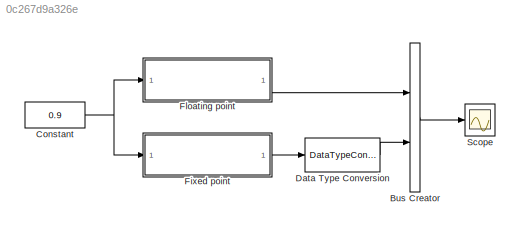
MODEL slx_0c267d9a326e
KIND model
BLOCK [BusCreator] Bus Creator
  DisplayOption = bar
  Inputs = 2
  Ports = [2, 1]
BLOCK [Constant] Constant
  SampleTime = Inf
  Value = 0.9
BLOCK [DataTypeConversion] Data Type Conversion
  OutDataTypeStr = double
  RndMeth = Floor
  SaturateOnIntegerOverflow = off
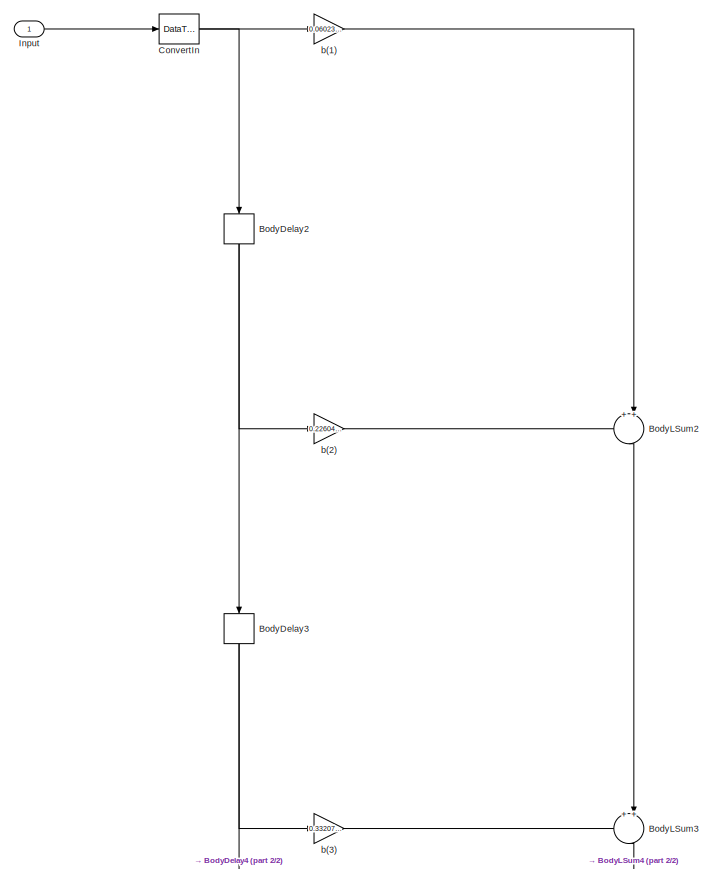
[diagram: Fixed point - part 1/2, full width, top band]
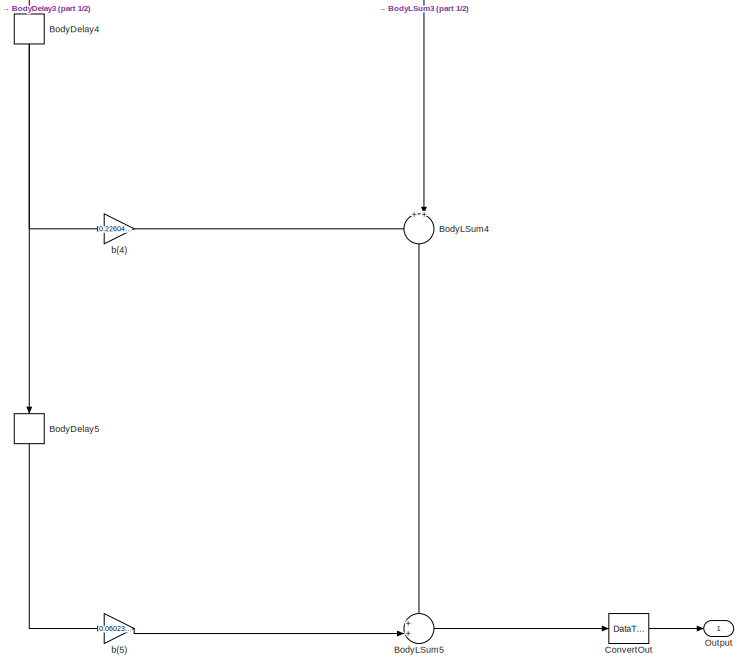
[diagram: Fixed point - part 2/2, full width, bottom band]
BLOCK [SubSystem] Fixed point
  ErrorFcn = dspFilterRealizedInBasicElemsAlgLoopErrFcnCallback
  FunctionWithSeparateData = off
  MaskHideContents = off
  MinAlgLoopOccurrences = off
  Opaque = off
  Ports = [1, 1]
  PropExecContextOutsideSubsystem = off
  RTWSystemCode = Auto
  RequestExecContextInheritance = off
  Tag = FilterWizardSubSystem
  UserDataPersistent = on
BLOCK [Delay] Fixed point/BodyDelay2
  DelayLength = 1
  InitialCondition = 0
  InputPortMap = u0
  InputProcessing = Columns as channels (frame based)
  Ports = [1, 1]
BLOCK [Delay] Fixed point/BodyDelay3
  DelayLength = 1
  InitialCondition = 0
  InputPortMap = u0
  InputProcessing = Columns as channels (frame based)
  Ports = [1, 1]
BLOCK [Delay] Fixed point/BodyDelay4
  DelayLength = 1
  InitialCondition = 0
  InputPortMap = u0
  InputProcessing = Columns as channels (frame based)
  Ports = [1, 1]
BLOCK [Delay] Fixed point/BodyDelay5
  DelayLength = 1
  InitialCondition = 0
  InputPortMap = u0
  InputProcessing = Columns as channels (frame based)
  Ports = [1, 1]
BLOCK [Sum] Fixed point/BodyLSum2
  AccumDataTypeStr = fixdt(1,22,21)
  IconShape = round
  InputSameDT = off
  Inputs = ++|
  OutDataTypeStr = fixdt(1,22,21)
  Ports = [2, 1]
  RndMeth = Convergent
  SaturateOnIntegerOverflow = off
BLOCK [Sum] Fixed point/BodyLSum3
  AccumDataTypeStr = fixdt(1,22,21)
  IconShape = round
  InputSameDT = off
  Inputs = ++|
  OutDataTypeStr = fixdt(1,22,21)
  Ports = [2, 1]
  RndMeth = Convergent
  SaturateOnIntegerOverflow = off
BLOCK [Sum] Fixed point/BodyLSum4
  AccumDataTypeStr = fixdt(1,22,21)
  IconShape = round
  InputSameDT = off
  Inputs = ++|
  OutDataTypeStr = fixdt(1,22,21)
  Ports = [2, 1]
  RndMeth = Convergent
  SaturateOnIntegerOverflow = off
BLOCK [Sum] Fixed point/BodyLSum5
  AccumDataTypeStr = fixdt(1,22,21)
  IconShape = round
  InputSameDT = off
  Inputs = ++|
  OutDataTypeStr = fixdt(1,22,21)
  Ports = [2, 1]
  RndMeth = Convergent
  SaturateOnIntegerOverflow = off
BLOCK [DataTypeConversion] Fixed point/ConvertIn
  OutDataTypeStr = fixdt(1,14,13)
  RndMeth = Nearest
BLOCK [DataTypeConversion] Fixed point/ConvertOut
  OutDataTypeStr = fixdt(1,15,13)
  RndMeth = Convergent
  SaturateOnIntegerOverflow = off
BLOCK [Inport] Fixed point/Input
  IconDisplay = Port number
BLOCK [Outport] Fixed point/Output
  IconDisplay = Port number
BLOCK [Gain] Fixed point/b(1)
  Gain = 0.060236516922905173
  OutDataTypeStr = fixdt(1,21,21)
  ParamDataTypeStr = fixdt(1,9,8)
  RndMeth = Convergent
  SaturateOnIntegerOverflow = off
BLOCK [Gain] Fixed point/b(2)
  Gain = 0.2260443581700223
  OutDataTypeStr = fixdt(1,21,21)
  ParamDataTypeStr = fixdt(1,9,8)
  RndMeth = Convergent
  SaturateOnIntegerOverflow = off
BLOCK [Gain] Fixed point/b(3)
  Gain = 0.33207645237567951
  OutDataTypeStr = fixdt(1,21,21)
  ParamDataTypeStr = fixdt(1,9,8)
  RndMeth = Convergent
  SaturateOnIntegerOverflow = off
BLOCK [Gain] Fixed point/b(4)
  Gain = 0.2260443581700223
  OutDataTypeStr = fixdt(1,21,21)
  ParamDataTypeStr = fixdt(1,9,8)
  RndMeth = Convergent
  SaturateOnIntegerOverflow = off
BLOCK [Gain] Fixed point/b(5)
  Gain = 0.060236516922905173
  OutDataTypeStr = fixdt(1,21,21)
  ParamDataTypeStr = fixdt(1,9,8)
  RndMeth = Convergent
  SaturateOnIntegerOverflow = off
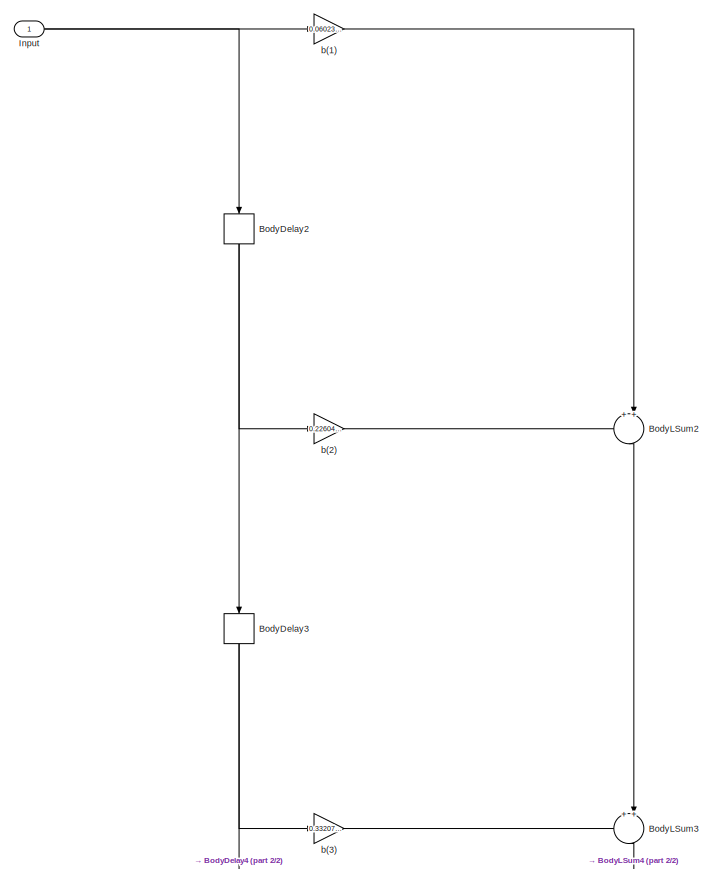
[diagram: Floating point - part 1/2, full width, top band]
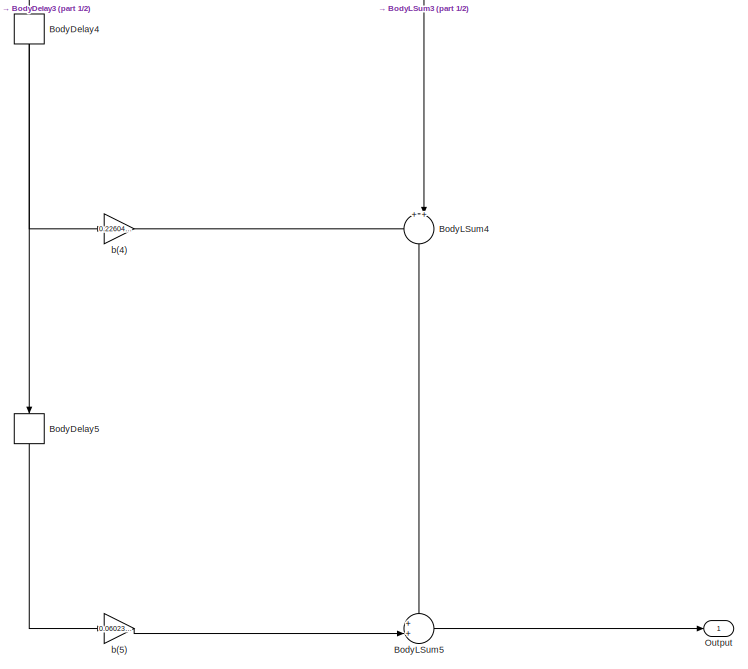
[diagram: Floating point - part 2/2, full width, bottom band]
BLOCK [SubSystem] Floating point
  ErrorFcn = dspFilterRealizedInBasicElemsAlgLoopErrFcnCallback
  FunctionWithSeparateData = off
  MaskHideContents = off
  MinAlgLoopOccurrences = off
  Opaque = off
  Ports = [1, 1]
  PropExecContextOutsideSubsystem = off
  RTWSystemCode = Auto
  RequestExecContextInheritance = off
  Tag = FilterWizardSubSystem
  UserDataPersistent = on
BLOCK [Delay] Floating point/BodyDelay2
  DelayLength = 1
  InitialCondition = 0
  InputPortMap = u0
  InputProcessing = Columns as channels (frame based)
  Ports = [1, 1]
BLOCK [Delay] Floating point/BodyDelay3
  DelayLength = 1
  InitialCondition = 0
  InputPortMap = u0
  InputProcessing = Columns as channels (frame based)
  Ports = [1, 1]
BLOCK [Delay] Floating point/BodyDelay4
  DelayLength = 1
  InitialCondition = 0
  InputPortMap = u0
  InputProcessing = Columns as channels (frame based)
  Ports = [1, 1]
BLOCK [Delay] Floating point/BodyDelay5
  DelayLength = 1
  InitialCondition = 0
  InputPortMap = u0
  InputProcessing = Columns as channels (frame based)
  Ports = [1, 1]
BLOCK [Sum] Floating point/BodyLSum2
  IconShape = round
  InputSameDT = off
  Inputs = ++|
  Ports = [2, 1]
  RndMeth = Nearest
BLOCK [Sum] Floating point/BodyLSum3
  IconShape = round
  InputSameDT = off
  Inputs = ++|
  Ports = [2, 1]
  RndMeth = Nearest
BLOCK [Sum] Floating point/BodyLSum4
  IconShape = round
  InputSameDT = off
  Inputs = ++|
  Ports = [2, 1]
  RndMeth = Nearest
BLOCK [Sum] Floating point/BodyLSum5
  IconShape = round
  InputSameDT = off
  Inputs = ++|
  Ports = [2, 1]
  RndMeth = Nearest
BLOCK [Inport] Floating point/Input
  IconDisplay = Port number
BLOCK [Outport] Floating point/Output
  IconDisplay = Port number
BLOCK [Gain] Floating point/b(1)
  Gain = 0.060236516922905173
  ParamDataTypeStr = double
  RndMeth = Nearest
BLOCK [Gain] Floating point/b(2)
  Gain = 0.2260443581700223
  ParamDataTypeStr = double
  RndMeth = Nearest
BLOCK [Gain] Floating point/b(3)
  Gain = 0.33207645237567951
  ParamDataTypeStr = double
  RndMeth = Nearest
BLOCK [Gain] Floating point/b(4)
  Gain = 0.2260443581700223
  ParamDataTypeStr = double
  RndMeth = Nearest
BLOCK [Gain] Floating point/b(5)
  Gain = 0.060236516922905173
  ParamDataTypeStr = double
  RndMeth = Nearest
BLOCK [Scope] Scope
  DataFormat = StructureWithTime
  Floating = off
  NumInputPorts = 1
  Ports = [1]
  SampleTime = 0
  ShowLegends = off
  ZoomMode = xonly
LINE Bus Creator:1 -> Scope:1
NET Constant:1 -> Fixed point:1, Floating point:1
LINE Data Type Conversion:1 -> Bus Creator:2
NET Fixed point/BodyDelay2:1 -> Fixed point/BodyDelay3:1, Fixed point/b(2):1
NET Fixed point/BodyDelay3:1 -> Fixed point/BodyDelay4:1, Fixed point/b(3):1
NET Fixed point/BodyDelay4:1 -> Fixed point/BodyDelay5:1, Fixed point/b(4):1
LINE Fixed point/BodyDelay5:1 -> Fixed point/b(5):1
LINE Fixed point/BodyLSum2:1 -> Fixed point/BodyLSum3:2
LINE Fixed point/BodyLSum3:1 -> Fixed point/BodyLSum4:2
LINE Fixed point/BodyLSum4:1 -> Fixed point/BodyLSum5:1
LINE Fixed point/BodyLSum5:1 -> Fixed point/ConvertOut:1
NET Fixed point/ConvertIn:1 -> Fixed point/BodyDelay2:1, Fixed point/b(1):1
LINE Fixed point/ConvertOut:1 -> Fixed point/Output:1
LINE Fixed point/Input:1 -> Fixed point/ConvertIn:1
LINE Fixed point/b(1):1 -> Fixed point/BodyLSum2:2
LINE Fixed point/b(2):1 -> Fixed point/BodyLSum2:1
LINE Fixed point/b(3):1 -> Fixed point/BodyLSum3:1
LINE Fixed point/b(4):1 -> Fixed point/BodyLSum4:1
LINE Fixed point/b(5):1 -> Fixed point/BodyLSum5:2
LINE Fixed point:1 -> Data Type Conversion:1
NET Floating point/BodyDelay2:1 -> Floating point/BodyDelay3:1, Floating point/b(2):1
NET Floating point/BodyDelay3:1 -> Floating point/BodyDelay4:1, Floating point/b(3):1
NET Floating point/BodyDelay4:1 -> Floating point/BodyDelay5:1, Floating point/b(4):1
LINE Floating point/BodyDelay5:1 -> Floating point/b(5):1
LINE Floating point/BodyLSum2:1 -> Floating point/BodyLSum3:2
LINE Floating point/BodyLSum3:1 -> Floating point/BodyLSum4:2
LINE Floating point/BodyLSum4:1 -> Floating point/BodyLSum5:1
LINE Floating point/BodyLSum5:1 -> Floating point/Output:1
NET Floating point/Input:1 -> Floating point/BodyDelay2:1, Floating point/b(1):1
LINE Floating point/b(1):1 -> Floating point/BodyLSum2:2
LINE Floating point/b(2):1 -> Floating point/BodyLSum2:1
LINE Floating point/b(3):1 -> Floating point/BodyLSum3:1
LINE Floating point/b(4):1 -> Floating point/BodyLSum4:1
LINE Floating point/b(5):1 -> Floating point/BodyLSum5:2
LINE Floating point:1 -> Bus Creator:1
note: NET lines group one-source signal fan-out (src -> all destinations, sorted); 1:1 wires keep LINE
